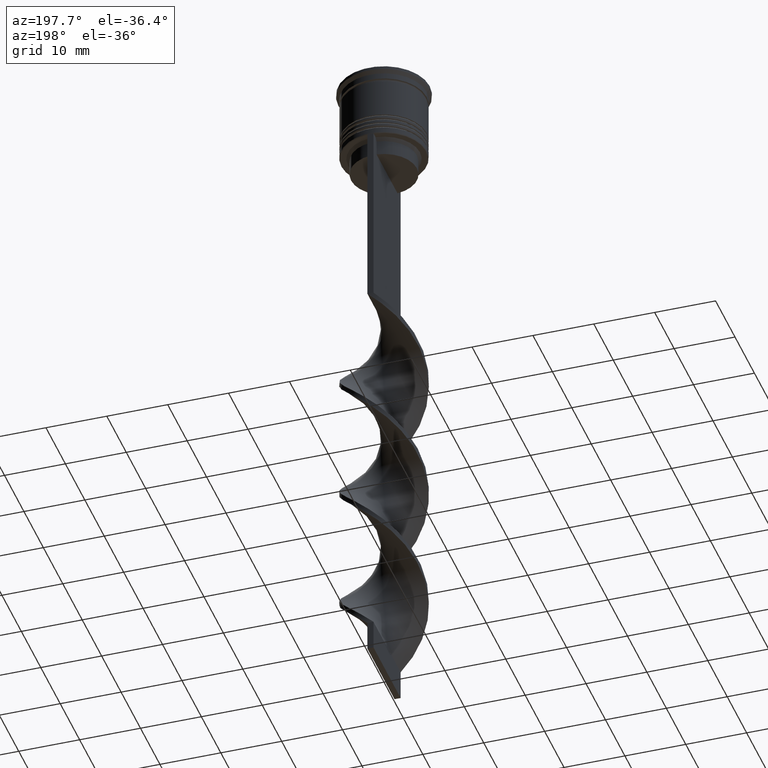
[diagram: clean part render]
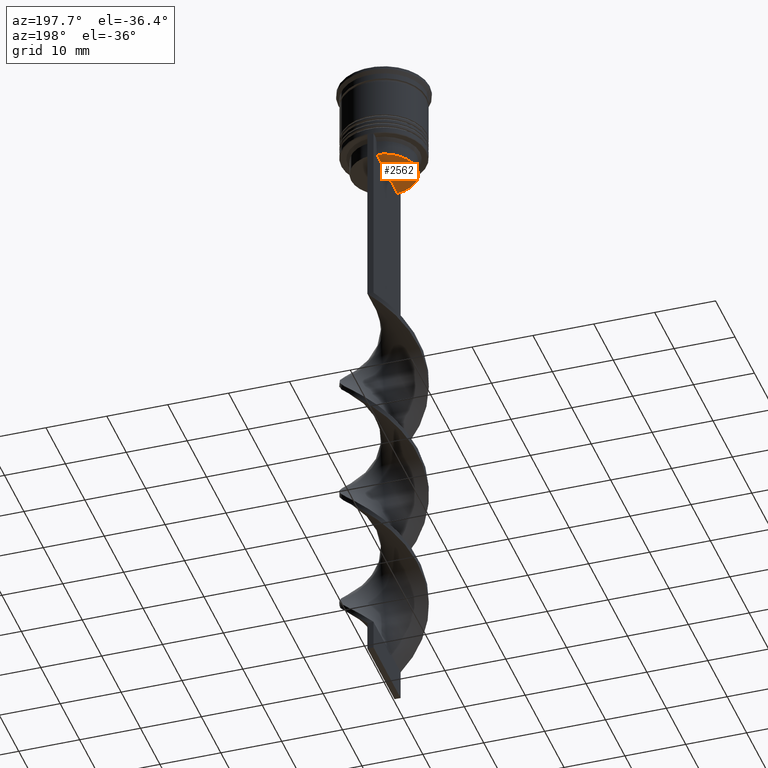
[diagram: same view with one face highlighted and labeled with its STEP entity id]
A machine part, auxiliary view. The second image highlights one B-rep face of the part: STEP entity #2562.
In plain terms, the highlighted planar face has unit normal (0, -0, 1).
Its self-contained STEP definition (entity closure, byte-faithful):
#27 = CIRCLE ( 'NONE', #1832, 5.400000000000003908 ) ;
#100 = ORIENTED_EDGE ( 'NONE', *, *, #1456, .F. ) ;
#164 = PLANE ( 'NONE',  #1786 ) ;
#465 = CARTESIAN_POINT ( 'NONE',  ( -0.5000000000000000000, -5.376802023508029826, -15.50000000000000000 ) ) ;
#588 = EDGE_CURVE ( 'NONE', #3492, #664, #1012, .T. ) ;
#602 = ORIENTED_EDGE ( 'NONE', *, *, #588, .T. ) ;
#664 = VERTEX_POINT ( 'NONE', #465 ) ;
#778 = VECTOR ( 'NONE', #2910, 1000.000000000000000 ) ;
#1012 = LINE ( 'NONE', #1859, #778 ) ;
#1456 = EDGE_CURVE ( 'NONE', #3492, #664, #27, .T. ) ;
#1559 = DIRECTION ( 'NONE',  ( -0.000000000000000000, -0.000000000000000000, 1.000000000000000000 ) ) ;
#1786 = AXIS2_PLACEMENT_3D ( 'NONE', #1861, #2087, #2987 ) ;
#1809 = CARTESIAN_POINT ( 'NONE',  ( -0.5000000000000000000, 5.376802023508029826, -15.50000000000000000 ) ) ;
#1832 = AXIS2_PLACEMENT_3D ( 'NONE', #2416, #1559, #3539 ) ;
#1859 = CARTESIAN_POINT ( 'NONE',  ( -0.5000000000000000000, 5.400000000000003908, -15.50000000000000000 ) ) ;
#1861 = CARTESIAN_POINT ( 'NONE',  ( 0.000000000000000000, 5.400000000000003908, -15.50000000000000000 ) ) ;
#2087 = DIRECTION ( 'NONE',  ( 0.000000000000000000, -0.000000000000000000, 1.000000000000000000 ) ) ;
#2335 = EDGE_LOOP ( 'NONE', ( #100, #602 ) ) ;
#2416 = CARTESIAN_POINT ( 'NONE',  ( 0.000000000000000000, 0.000000000000000000, -15.50000000000000000 ) ) ;
#2562 = ADVANCED_FACE ( 'NONE', ( #2710 ), #164, .F. ) ;
#2710 = FACE_OUTER_BOUND ( 'NONE', #2335, .T. ) ;
#2910 = DIRECTION ( 'NONE',  ( 0.000000000000000000, -1.000000000000000000, 0.000000000000000000 ) ) ;
#2987 = DIRECTION ( 'NONE',  ( 1.000000000000000000, 0.000000000000000000, 0.000000000000000000 ) ) ;
#3492 = VERTEX_POINT ( 'NONE', #1809 ) ;
#3539 = DIRECTION ( 'NONE',  ( 1.000000000000000000, 0.000000000000000000, 0.000000000000000000 ) ) ;